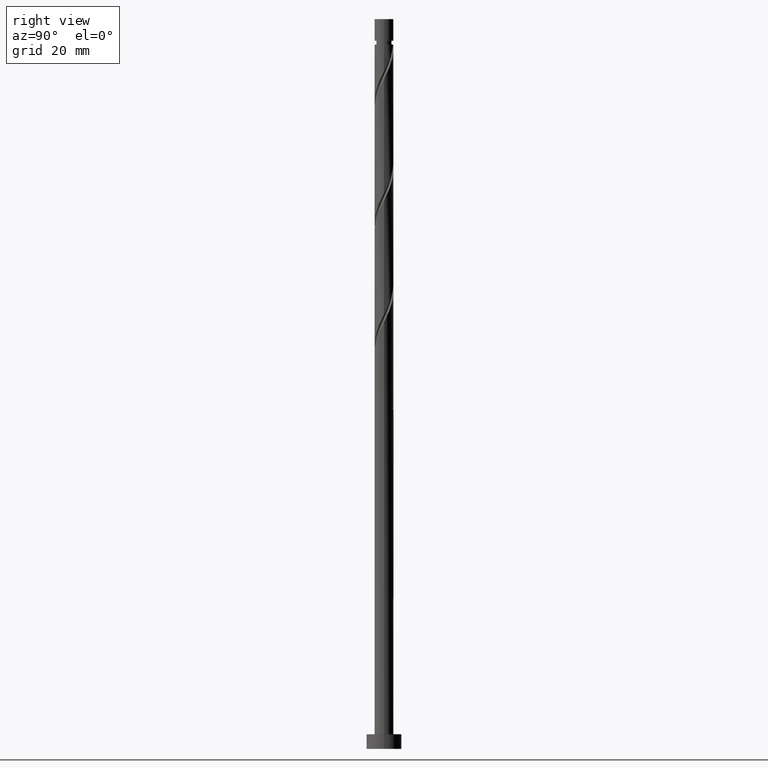
[diagram: clean part render]
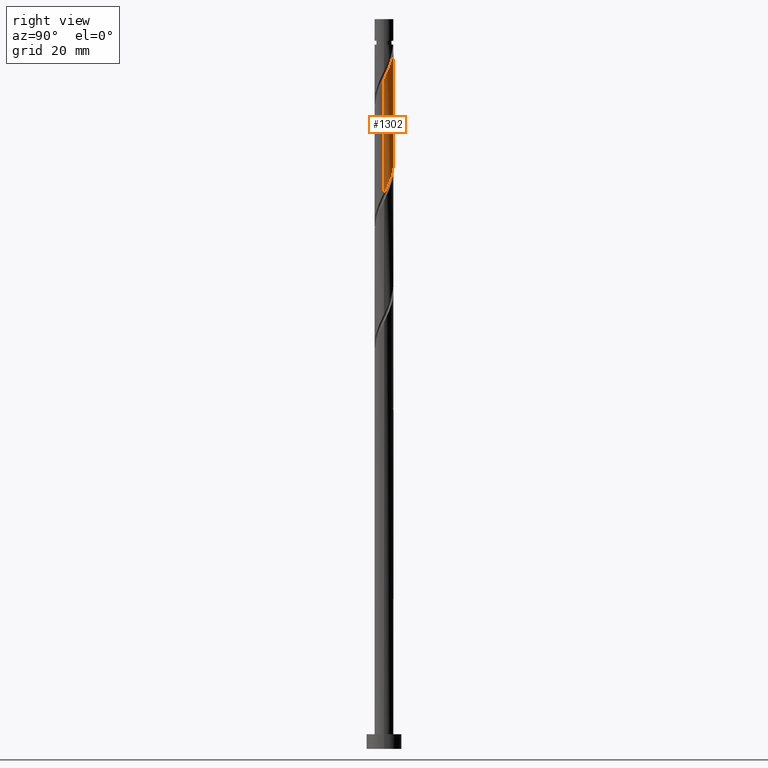
[diagram: same view with one face highlighted and labeled with its STEP entity id]
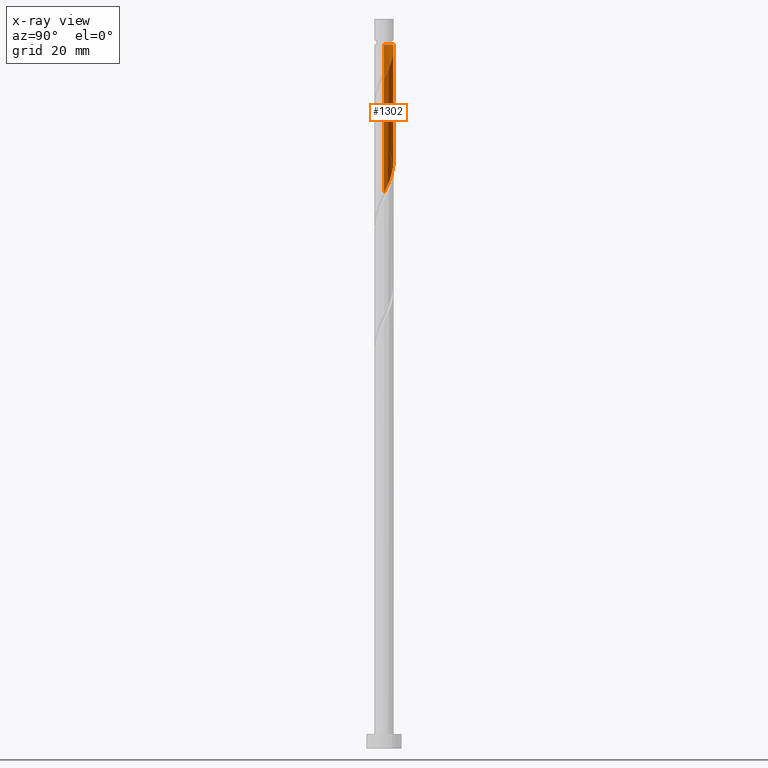
[diagram: x-ray of the same camera — body ghosted, the highlighted face saturated]
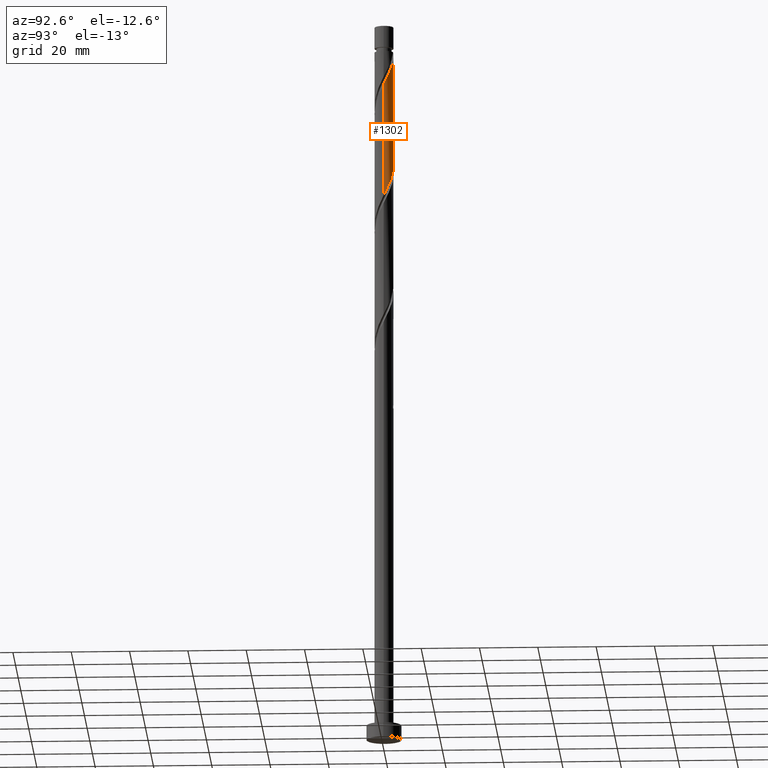
[diagram: same view with one face highlighted and labeled with its STEP entity id]
A machine part, right view. The second image highlights one B-rep face of the part: STEP entity #1302.
The next image is the same camera in x-ray: the body ghosted, the highlighted face saturated — about 0% of this face is hidden behind the body in this view.
A second angle (auxiliary view) of the same face is appended — the face is thin or edge-on in the first view.
In plain terms, the highlighted cylindrical surface (edge-blend (fillet) strip) has radius 3.25 mm, axis along (-0, -0, -1).
Its self-contained STEP definition (entity closure, byte-faithful):
#1 = CARTESIAN_POINT ( 'NONE',  ( -0.6467418341193044151, 3.185000000000002274, 241.2698386400796835 ) ) ;
#14 = CARTESIAN_POINT ( 'NONE',  ( -3.250000000000000444, 5.099975039850755207E-15, 211.3477605159716290 ) ) ;
#54 = CIRCLE ( 'NONE', #1028, 3.249999999999984013 ) ;
#61 = CARTESIAN_POINT ( 'NONE',  ( 1.969497422358212901, 2.615206681803766919, 235.6608642811052903 ) ) ;
#74 = CARTESIAN_POINT ( 'NONE',  ( -2.959250504853443875, 1.400379425281348844, 208.4172745375156239 ) ) ;
#80 = CARTESIAN_POINT ( 'NONE',  ( 1.390169082581129922, 2.937674236847158671, 198.0006078708489667 ) ) ;
#96 = CARTESIAN_POINT ( 'NONE',  ( 3.239733877669286333, 0.2581170313674799321, 230.0518899221309823 ) ) ;
#98 = CARTESIAN_POINT ( 'NONE',  ( -1.627952452366741021, 2.812875897161677852, 204.4108642811053471 ) ) ;
#120 = CARTESIAN_POINT ( 'NONE',  ( 3.250000000000004441, -1.166563205596351020E-15, 229.5252500975211660 ) ) ;
#179 = ORIENTED_EDGE ( 'NONE', *, *, #1100, .F. ) ;
#205 = CARTESIAN_POINT ( 'NONE',  ( 3.250000000000000444, 4.068015281053975210E-15, 190.5144271826383147 ) ) ;
#207 = CARTESIAN_POINT ( 'NONE',  ( -1.286407482375274913, 3.010545112519589672, 203.6095822298233315 ) ) ;
#220 = CARTESIAN_POINT ( 'NONE',  ( -0.1342716989306150244, 3.247225140156789536, 201.2057360759771996 ) ) ;
#331 = LINE ( 'NONE', #903, #1171 ) ;
#337 = CARTESIAN_POINT ( 'NONE',  ( 2.959250504853450092, 1.400379425281349066, 232.4557360759771427 ) ) ;
#348 = CARTESIAN_POINT ( 'NONE',  ( 1.627952452366745906, 2.812875897161680516, 236.4621463323873911 ) ) ;
#370 = CARTESIAN_POINT ( 'NONE',  ( 3.207364547986603753, 0.5247024455047691882, 191.5903514605925864 ) ) ;
#384 = AXIS2_PLACEMENT_3D ( 'NONE', #414, #834, #697 ) ;
#406 =( BOUNDED_CURVE ( )  B_SPLINE_CURVE ( 2, ( #541, #1497, #810, #1334, #801, #74, #1359, #791, #1602, #502, #98, #207, #1612, #923, #220, #1342, #669, #1070, #80, #1216, #644, #1772, #512, #1794, #1622, #1088, #370, #934, #1471 ),
 .UNSPECIFIED., .F., .T. ) 
 B_SPLINE_CURVE_WITH_KNOTS ( ( 3, 2, 2, 2, 2, 2, 2, 2, 2, 2, 2, 2, 2, 2, 3 ),
 ( 0.4295271625973831608, 0.4326923076923077094, 0.4423076923076922906, 0.4519230769230769273, 0.4615384615384615641, 0.4711538461538461453, 0.4807692307692307820, 0.4903846153846153633, 0.5000000000000000000, 0.5096153846153845812, 0.5192307692307692735, 0.5288461538461538547, 0.5384615384615384359, 0.5480769230769231282, 0.5545271625973829943 ),
 .UNSPECIFIED. ) 
 CURVE ( )  GEOMETRIC_REPRESENTATION_ITEM ( )  RATIONAL_B_SPLINE_CURVE ( ( 0.9061636035682838486, 0.9069090390690724979, 0.9090909090909291557, 0.9024626128164325856, 0.9090909090909291557, 0.9024626128164325856, 0.9090909090909291557, 0.9024626128164325856, 0.9090909090909291557, 0.9024626128164325856, 0.9090909090909291557, 0.9024626128164325856, 0.9090909090909291557, 0.9024626128164325856, 0.9090909090909291557, 0.9024626128164325856, 0.9090909090909291557, 0.9024626128164325856, 0.9090909090909291557, 0.9024626128164325856, 0.9090909090909291557, 0.9024626128164325856, 0.9090909090909291557, 0.9024626128164325856, 0.9090909090909291557, 0.9024626128164325856, 0.9090909090909291557, 0.9046444828382893544, 0.9061636035682838486 ) ) 
 REPRESENTATION_ITEM ( '' )  );
#414 = CARTESIAN_POINT ( 'NONE',  ( 0.000000000000000000, 0.000000000000000000, 250.0000000000000000 ) ) ;
#451 = EDGE_CURVE ( 'NONE', #658, #1624, #331, .T. ) ;
#464 = LINE ( 'NONE', #1802, #1435 ) ;
#486 = EDGE_CURVE ( 'NONE', #1470, #1624, #406, .T. ) ;
#502 = CARTESIAN_POINT ( 'NONE',  ( -1.969497422358206684, 2.615206681803766031, 205.2121463323874480 ) ) ;
#512 = CARTESIAN_POINT ( 'NONE',  ( 2.596138880627123946, 1.955137568688233740, 194.7954796657207908 ) ) ;
#541 = CARTESIAN_POINT ( 'NONE',  ( -3.250000000000000444, 5.099975039850754418E-15, 211.3477605159716290 ) ) ;
#551 = EDGE_CURVE ( 'NONE', #1466, #704, #54, .T. ) ;
#554 = FACE_OUTER_BOUND ( 'NONE', #1662, .T. ) ;
#557 = DIRECTION ( 'NONE',  ( -1.000000000000000000, 0.000000000000000000, 0.000000000000000000 ) ) ;
#644 = CARTESIAN_POINT ( 'NONE',  ( 2.052804757022351545, 2.519621525060142808, 196.3980437682848788 ) ) ;
#656 = CARTESIAN_POINT ( 'NONE',  ( 0.000000000000000000, 0.000000000000000000, 241.2698386400797403 ) ) ;
#658 = VERTEX_POINT ( 'NONE', #120 ) ;
#669 = CARTESIAN_POINT ( 'NONE',  ( 0.6467418341193055253, 3.184999999999998721, 199.6031719734130547 ) ) ;
#697 = DIRECTION ( 'NONE',  ( -1.000000000000000000, 0.000000000000000000, 0.000000000000000000 ) ) ;
#704 = VERTEX_POINT ( 'NONE', #1 ) ;
#710 = CARTESIAN_POINT ( 'NONE',  ( -0.2600128175564032640, 3.263528676131572936, 240.4685565887976111 ) ) ;
#748 = ORIENTED_EDGE ( 'NONE', *, *, #451, .T. ) ;
#791 = CARTESIAN_POINT ( 'NONE',  ( -2.538127330985530339, 2.067881944631015489, 206.8147104349515075 ) ) ;
#801 = CARTESIAN_POINT ( 'NONE',  ( -3.083821650335321074, 1.025935684593889841, 209.2185565887976963 ) ) ;
#810 = CARTESIAN_POINT ( 'NONE',  ( -3.239733877669281448, 0.2581170313674822081, 210.8211206913617843 ) ) ;
#815 = CARTESIAN_POINT ( 'NONE',  ( -0.6467418341193044151, 3.185000000000003162, 241.2698386400796835 ) ) ;
#830 = CARTESIAN_POINT ( 'NONE',  ( 0.5285562154176379757, 3.230921604182017681, 238.8659924862335799 ) ) ;
#834 = DIRECTION ( 'NONE',  ( -0.000000000000000000, -0.000000000000000000, -1.000000000000000000 ) ) ;
#901 = CARTESIAN_POINT ( 'NONE',  ( 2.748688917919491548, 1.734130684956184165, 233.2570181272591583 ) ) ;
#903 = CARTESIAN_POINT ( 'NONE',  ( 3.250000000000000444, 3.980102097228898231E-16, 250.0000000000000000 ) ) ;
#923 = CARTESIAN_POINT ( 'NONE',  ( -0.5285562154176352001, 3.230921604182013240, 202.0070181272592720 ) ) ;
#934 = CARTESIAN_POINT ( 'NONE',  ( 3.249999999999997780, 0.2640834252454084541, 191.0541279199865699 ) ) ;
#978 = CARTESIAN_POINT ( 'NONE',  ( 0.9074818488964597751, 3.120733358350805453, 238.0647104349515359 ) ) ;
#1028 = AXIS2_PLACEMENT_3D ( 'NONE', #656, #1116, #557 ) ;
#1059 = CARTESIAN_POINT ( 'NONE',  ( 1.286407482375278022, 3.010545112519593669, 237.2634283836694351 ) ) ;
#1070 = CARTESIAN_POINT ( 'NONE',  ( 1.033470850682206565, 3.106471323868430723, 198.8018899221310107 ) ) ;
#1084 = CARTESIAN_POINT ( 'NONE',  ( 3.083821650335326847, 1.025935684593888286, 231.6544540246951271 ) ) ;
#1088 = CARTESIAN_POINT ( 'NONE',  ( 3.143654136451845105, 0.9141470098380702902, 192.3916335118746304 ) ) ;
#1095 = CARTESIAN_POINT ( 'NONE',  ( 0.1342716989306189102, 3.247225140156795309, 239.6672745375156524 ) ) ;
#1100 = EDGE_CURVE ( 'NONE', #658, #704, #1399, .T. ) ;
#1116 = DIRECTION ( 'NONE',  ( -0.000000000000000000, -0.000000000000000000, -1.000000000000000000 ) ) ;
#1171 = VECTOR ( 'NONE', #1309, 1000.000000000000000 ) ;
#1178 = ORIENTED_EDGE ( 'NONE', *, *, #486, .F. ) ;
#1193 = CARTESIAN_POINT ( 'NONE',  ( 3.250000000000005773, 0.1292626735944883976, 229.7894210131541399 ) ) ;
#1216 = CARTESIAN_POINT ( 'NONE',  ( 1.746867314480051947, 2.768877149825889727, 197.1993258195669227 ) ) ;
#1302 = ADVANCED_FACE ( 'NONE', ( #554 ), #1666, .T. ) ;
#1309 = DIRECTION ( 'NONE',  ( -0.000000000000000000, -0.000000000000000000, -1.000000000000000000 ) ) ;
#1318 = CARTESIAN_POINT ( 'NONE',  ( 2.253812376671873174, 2.341544313217394535, 234.8595822298233315 ) ) ;
#1334 = CARTESIAN_POINT ( 'NONE',  ( -3.208392795817198717, 0.6514919439064305040, 210.0198386400797688 ) ) ;
#1342 = CARTESIAN_POINT ( 'NONE',  ( 0.2600128175564052069, 3.263528676131567607, 200.4044540246951840 ) ) ;
#1344 = CARTESIAN_POINT ( 'NONE',  ( -3.249999999999984013, 0.000000000000000000, 241.2698386400797403 ) ) ;
#1356 = CARTESIAN_POINT ( 'NONE',  ( 3.250000000000004885, -1.166563205596351020E-15, 229.5252500975211660 ) ) ;
#1359 = CARTESIAN_POINT ( 'NONE',  ( -2.748688917919486663, 1.734130684956182167, 207.6159924862336084 ) ) ;
#1399 =( BOUNDED_CURVE ( )  B_SPLINE_CURVE ( 2, ( #1356, #1193, #96, #1758, #1084, #337, #901, #1462, #1318, #61, #348, #1059, #978, #830, #1095, #710, #815 ),
 .UNSPECIFIED., .F., .T. ) 
 B_SPLINE_CURVE_WITH_KNOTS ( ( 3, 2, 2, 2, 2, 2, 2, 2, 3 ),
 ( 0.6795271625973831053, 0.6826923076923077094, 0.6923076923076922906, 0.7019230769230768718, 0.7115384615384615641, 0.7211538461538461453, 0.7307692307692308376, 0.7403846153846154188, 0.7500000000000000000 ),
 .UNSPECIFIED. ) 
 CURVE ( )  GEOMETRIC_REPRESENTATION_ITEM ( )  RATIONAL_B_SPLINE_CURVE ( ( 0.9061636035682908430, 0.9069090390690794923, 0.9090909090909361501, 0.9024626128164395800, 0.9090909090909361501, 0.9024626128164395800, 0.9090909090909361501, 0.9024626128164395800, 0.9090909090909361501, 0.9024626128164395800, 0.9090909090909361501, 0.9024626128164395800, 0.9090909090909361501, 0.9024626128164395800, 0.9090909090909361501, 0.9024626128164395800, 0.9090909090909361501 ) ) 
 REPRESENTATION_ITEM ( '' )  );
#1404 = ORIENTED_EDGE ( 'NONE', *, *, #1777, .F. ) ;
#1435 = VECTOR ( 'NONE', #1513, 1000.000000000000000 ) ;
#1462 = CARTESIAN_POINT ( 'NONE',  ( 2.538127330985536556, 2.067881944631017266, 234.0583001785412023 ) ) ;
#1466 = VERTEX_POINT ( 'NONE', #1344 ) ;
#1470 = VERTEX_POINT ( 'NONE', #14 ) ;
#1471 = CARTESIAN_POINT ( 'NONE',  ( 3.250000000000000444, 4.068015281053975210E-15, 190.5144271826382862 ) ) ;
#1497 = CARTESIAN_POINT ( 'NONE',  ( -3.250000000000000444, 0.1292626735944932825, 211.0835896003387120 ) ) ;
#1513 = DIRECTION ( 'NONE',  ( -0.000000000000000000, -0.000000000000000000, -1.000000000000000000 ) ) ;
#1602 = CARTESIAN_POINT ( 'NONE',  ( -2.253812376671868289, 2.341544313217390094, 206.0134283836694635 ) ) ;
#1612 = CARTESIAN_POINT ( 'NONE',  ( -0.9074818488964551122, 3.120733358350800568, 202.8083001785412591 ) ) ;
#1622 = CARTESIAN_POINT ( 'NONE',  ( 2.988594849070721704, 1.277028123460070663, 193.1929155631566744 ) ) ;
#1624 = VERTEX_POINT ( 'NONE', #205 ) ;
#1662 = EDGE_LOOP ( 'NONE', ( #179, #748, #1178, #1404, #1775 ) ) ;
#1666 = CYLINDRICAL_SURFACE ( 'NONE', #384, 3.250000000000000444 ) ;
#1758 = CARTESIAN_POINT ( 'NONE',  ( 3.208392795817203602, 0.6514919439064300599, 230.8531719734130547 ) ) ;
#1772 = CARTESIAN_POINT ( 'NONE',  ( 2.358742199564649145, 2.270365900294399886, 195.5967617170028348 ) ) ;
#1775 = ORIENTED_EDGE ( 'NONE', *, *, #551, .T. ) ;
#1777 = EDGE_CURVE ( 'NONE', #1466, #1470, #464, .T. ) ;
#1794 = CARTESIAN_POINT ( 'NONE',  ( 2.833535561689598747, 1.639909237082068261, 193.9941976144387183 ) ) ;
#1802 = CARTESIAN_POINT ( 'NONE',  ( -3.250000000000000444, 0.000000000000000000, 250.0000000000000000 ) ) ;